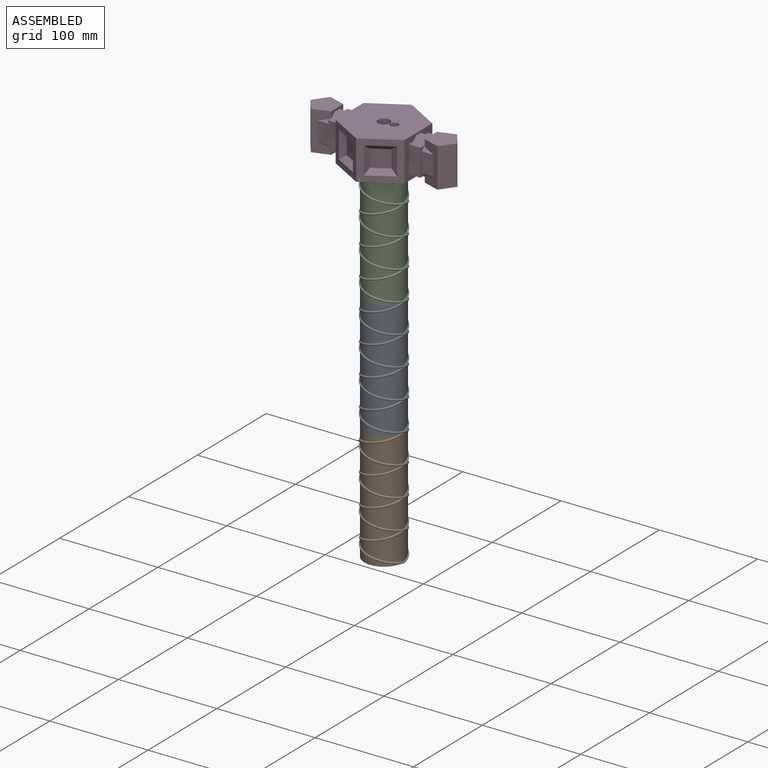
[diagram: assembled view]
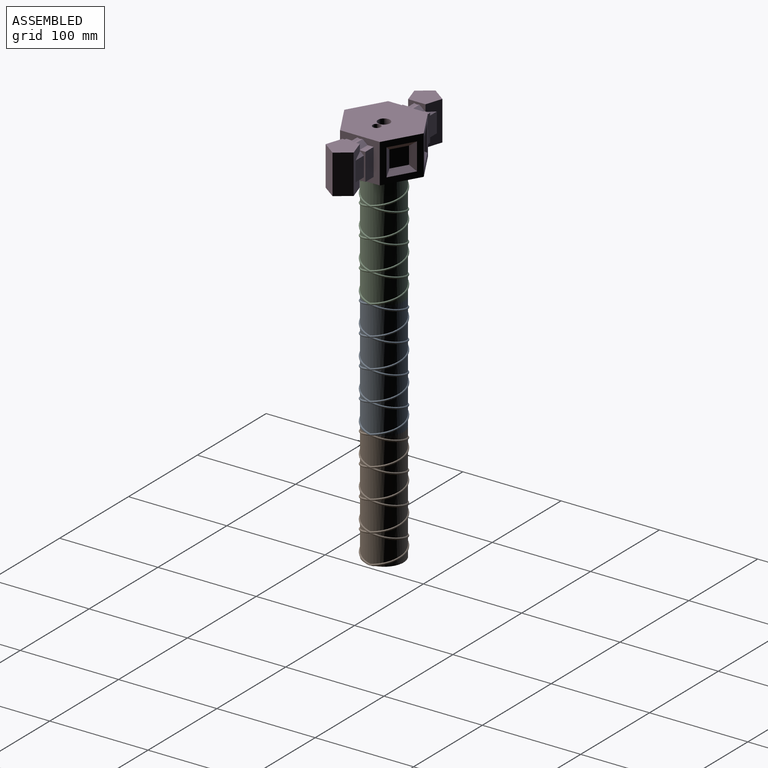
[diagram: assembled view, second angle]
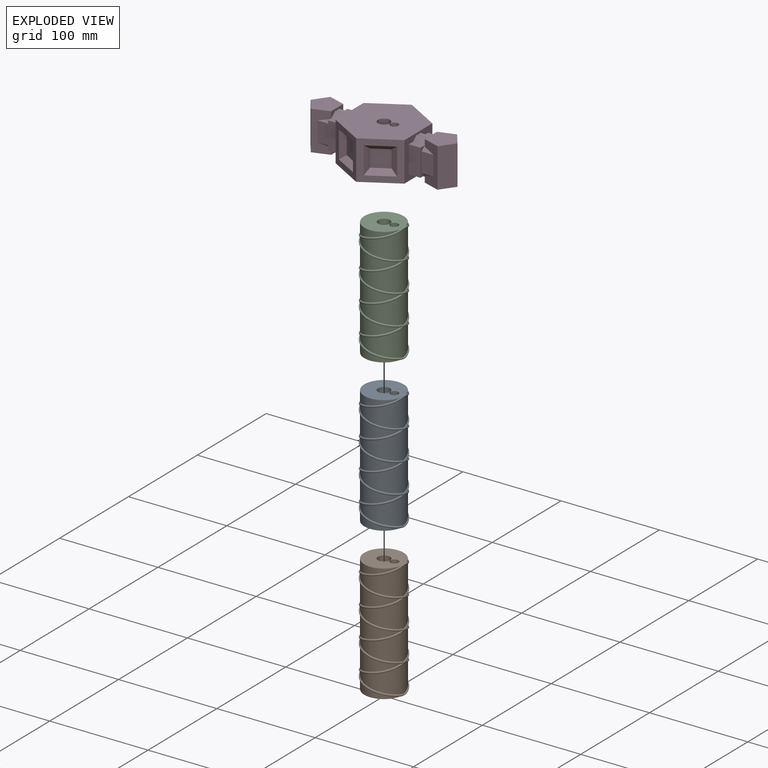
[diagram: exploded view]
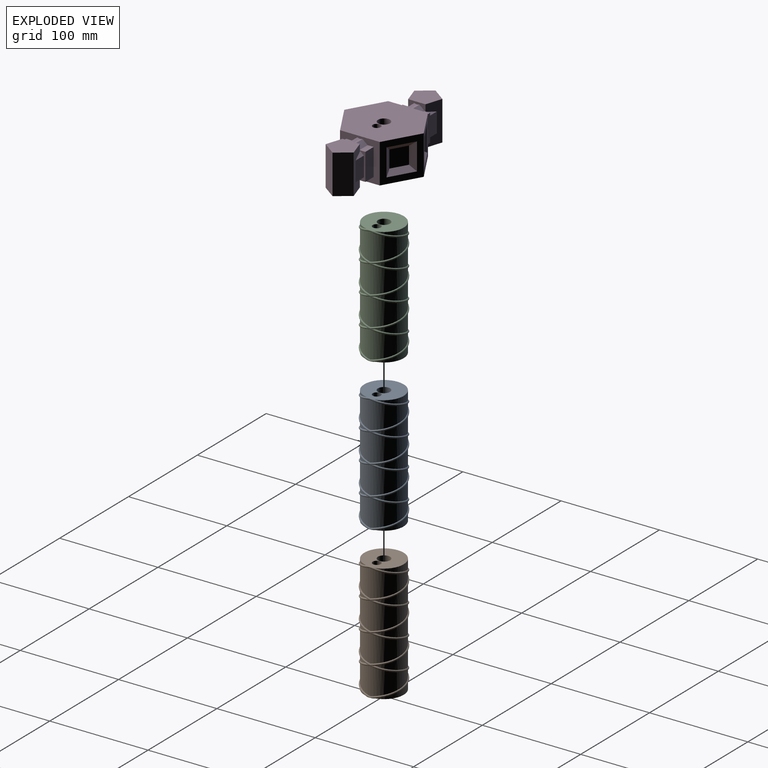
[diagram: exploded view, second angle]
ASSEMBLY  parts=4 mates=3
PART A: 29 faces, bbox 44x46.3x122 mm
  f0: bspline ~44x36.06mm, area 197.6mm2, adj f1,f4,f18,f20,f21
  f1: bspline ~44x36.06mm, area 197.6mm2, adj f0,f4,f17,f18,f20
  f2: bspline ~44x36.06mm, area 197.6mm2, adj f3,f10,f11,f19,f26
  f3: bspline ~44x36.06mm, area 197.6mm2, adj f2,f10,f11,f12,f19
  f4: cylinder r=20mm len=40mm, axis (0,0,-1), area 1641.1mm2, adj f0,f1,f17,f21
  f5: cylinder r=20mm len=40mm, axis (0,0,-1), area 1641.1mm2, adj f16,f17,f21,f22
  f6: cylinder r=20mm len=40mm, axis (0,0,-1), area 1641.1mm2, adj f15,f16,f22,f23
  f7: cylinder r=20mm len=40mm, axis (0,0,-1), area 1641.1mm2, adj f14,f15,f23,f24
  f8: cylinder r=20mm len=40mm, axis (0,0,-1), area 1641.1mm2, adj f13,f14,f24,f25
  f9: cylinder r=20mm len=40mm, axis (0,0,-1), area 1641.1mm2, adj f12,f13,f25,f26
  f10: cylinder r=20mm len=40mm, axis (0,0,-1), area 1641.1mm2, adj f2,f3,f12,f26
  f11: cylinder r=20mm len=40mm, axis (0,0,-1), area 820.6mm2, adj f2,f3,f19
  f12: bspline ~44x36.06mm, area 197.6mm2, adj f3,f9,f10,f25,f26
  f13: bspline ~44x36.06mm, area 197.6mm2, adj f8,f9,f24,f25,f26
  f14: bspline ~44x36.06mm, area 197.6mm2, adj f7,f8,f23,f24,f25
  f15: bspline ~44x36.06mm, area 197.6mm2, adj f6,f7,f22,f23,f24
  f16: bspline ~44x36.06mm, area 197.6mm2, adj f5,f6,f21,f22,f23
  f17: bspline ~44x36.06mm, area 197.6mm2, adj f1,f4,f5,f21,f22
  f18: cylinder r=20mm len=40mm, axis (0,0,-1), area 820.6mm2, adj f0,f1,f20
  f19: plane 41x40mm, normal (0,0,1), area 1090.5mm2, adj f2,f3,f11,f27,f28
  f20: plane 41x40mm, normal (0,0,-1), area 1090.5mm2, adj f0,f1,f18,f27,f28
  f21: bspline ~44x36.06mm, area 197.6mm2, adj f0,f4,f5,f16,f17
  f22: bspline ~44x36.06mm, area 197.6mm2, adj f5,f6,f15,f16,f17
  f23: bspline ~44x36.06mm, area 197.6mm2, adj f6,f7,f14,f15,f16
  f24: bspline ~44x36.06mm, area 197.6mm2, adj f7,f8,f13,f14,f15
  f25: bspline ~44x36.06mm, area 197.6mm2, adj f8,f9,f12,f13,f14
  f26: bspline ~44x36.06mm, area 197.6mm2, adj f2,f9,f10,f12,f13
  f27: cylinder r=4.15mm len=120mm, axis (0,0,1), area 3129mm2, adj f19,f20
  f28: cylinder r=6.15mm len=120mm, axis (0,0,1), area 4637mm2, adj f19,f20
PART B: 33 faces, bbox 44x46.3x122 mm
  f0: bspline ~44x36.06mm, area 197.6mm2, adj f1,f4,f18,f20,f21
  f1: bspline ~44x36.06mm, area 197.6mm2, adj f0,f4,f17,f18,f20
  f2: bspline ~44x36.06mm, area 197.6mm2, adj f3,f10,f11,f19,f26
  f3: bspline ~44x36.06mm, area 197.6mm2, adj f2,f10,f11,f12,f19
  f4: cylinder r=20mm len=40mm, axis (0,0,-1), area 1641.1mm2, adj f0,f1,f17,f21
  f5: cylinder r=20mm len=40mm, axis (0,0,-1), area 1641.1mm2, adj f16,f17,f21,f22
  f6: cylinder r=20mm len=40mm, axis (0,0,-1), area 1641.1mm2, adj f15,f16,f22,f23
  f7: cylinder r=20mm len=40mm, axis (0,0,-1), area 1641.1mm2, adj f14,f15,f23,f24
  f8: cylinder r=20mm len=40mm, axis (0,0,-1), area 1641.1mm2, adj f13,f14,f24,f25
  f9: cylinder r=20mm len=40mm, axis (0,0,-1), area 1641.1mm2, adj f12,f13,f25,f26
  f10: cylinder r=20mm len=40mm, axis (0,0,-1), area 1641.1mm2, adj f2,f3,f12,f26
  f11: cylinder r=20mm len=40mm, axis (0,0,-1), area 820.6mm2, adj f2,f3,f19
  f12: bspline ~44x36.06mm, area 197.6mm2, adj f3,f9,f10,f25,f26
  f13: bspline ~44x36.06mm, area 197.6mm2, adj f8,f9,f24,f25,f26
  f14: bspline ~44x36.06mm, area 197.6mm2, adj f7,f8,f23,f24,f25
  f15: bspline ~44x36.06mm, area 197.6mm2, adj f6,f7,f22,f23,f24
  f16: bspline ~44x36.06mm, area 197.6mm2, adj f5,f6,f21,f22,f23
  f17: bspline ~44x36.06mm, area 197.6mm2, adj f1,f4,f5,f21,f22
  f18: cylinder r=20mm len=40mm, axis (0,0,-1), area 820.6mm2, adj f0,f1,f20
  f19: plane 41x40mm, normal (0,0,1), area 1090.5mm2, adj f2,f3,f11,f27,f29
  f20: plane 41x40mm, normal (0,0,-1), area 1263.4mm2, adj f0,f1,f18
  f21: bspline ~44x36.06mm, area 197.6mm2, adj f0,f4,f5,f16,f17
  f22: bspline ~44x36.06mm, area 197.6mm2, adj f5,f6,f15,f16,f17
  f23: bspline ~44x36.06mm, area 197.6mm2, adj f6,f7,f14,f15,f16
  f24: bspline ~44x36.06mm, area 197.6mm2, adj f7,f8,f13,f14,f15
  f25: bspline ~44x36.06mm, area 197.6mm2, adj f8,f9,f12,f13,f14
  f26: bspline ~44x36.06mm, area 197.6mm2, adj f2,f9,f10,f12,f13
  f27: cylinder r=4.15mm len=88mm, axis (0,0,1), area 2294.6mm2, adj f19,f31
  f28: plane 4.3x4.3mm, normal (0,0,1), area 14.5mm2, adj f31
  f29: cylinder r=6.15mm len=88mm, axis (0,0,1), area 3400.5mm2, adj f19,f32
  f30: plane 8.3x8.3mm, normal (0,0,1), area 54.1mm2, adj f32
  f31: cone r=2.15mm half-angle=45deg, axis (0,0,1), area 56mm2, adj f27,f28
  f32: cone r=4.15mm half-angle=45deg, axis (0,0,1), area 91.5mm2, adj f29,f30
PART C: same geometry as A
PART D: 82 faces, bbox 149.6x80.8x40 mm
  f0: plane 20.15x11.99mm, normal (0,-1,0), area 241.6mm2, adj f16,f71,f75,f79
  f1: plane 20x11.99mm, normal (0,1,0), area 239.9mm2, adj f19,f64,f74,f78
  f2: plane 20x11.99mm, normal (0,-1,0), area 239.9mm2, adj f29,f63,f72,f77
  f3: plane 20x11.99mm, normal (0,1,0), area 239.9mm2, adj f32,f56,f73,f76
  f4: plane 40x35mm, normal (-0.5,-0.87,0), area 843.4mm2, adj f5,f9,f10,f11,f48,f49,f50,f51
  f5: plane 40x35mm, normal (0.5,-0.87,0), area 843.4mm2, adj f4,f6,f10,f11,f52,f53,f54,f55
  f6: plane 40.41x40mm, normal (1,0,0), area 756.1mm2, adj f5,f7,f10,f11,f24,f25,f26,f27
  f7: plane 40x35mm, normal (0.5,0.87,0), area 843.4mm2, adj f6,f8,f10,f11,f44,f45,f46,f47
  f8: plane 40x35mm, normal (-0.5,0.87,0), area 843.4mm2, adj f7,f9,f10,f11,f40,f41,f42,f43
  f9: plane 40.41x40mm, normal (-1,0,0), area 756.5mm2, adj f4,f8,f10,f11,f20,f21,f22,f23
  f10: plane 80.83x70mm, normal (0,0,1), area 4073.8mm2, adj f4,f5,f6,f7,f8,f9,f80,f81
  f11: plane 80.83x70mm, normal (0,0,-1), area 4073.8mm2, adj f4,f5,f6,f7,f8,f9,f80,f81
  f12: plane 40x14.27mm, normal (-0.81,-0.59,0), area 705.3mm2, adj f13,f14,f15,f16
  f13: plane 28.53x27.14mm, normal (0,0,1), area 535mm2, adj f12,f14,f16,f18,f19
  f14: plane 40x14.27mm, normal (-0.81,0.59,0), area 705.3mm2, adj f12,f13,f15,f19
  f15: plane 28.53x27.14mm, normal (0,0,-1), area 535mm2, adj f12,f14,f16,f17,f19
  f16: plane 40x16.77mm, normal (0.31,-0.95,0), area 429.7mm2, adj f0,f12,f13,f15,f17,f18,f75,f79
  f17: plane 17.63x6.98mm, normal (1,0,0), area 66.4mm2, adj f15,f16,f19,f21,f22,f78,f79
  f18: plane 17.63x6.94mm, normal (1,0,0), area 66.7mm2, adj f13,f16,f19,f20,f23,f74,f75
  f19: plane 40x16.77mm, normal (0.31,0.95,0), area 430.7mm2, adj f1,f13,f14,f15,f17,f18,f74,f78
  f20: plane 12.66x2.68mm, normal (0,-0.19,0.98), area 34.6mm2, adj f9,f18,f23,f74
  f21: plane 12.66x2.82mm, normal (0,-0.19,-0.98), area 36.4mm2, adj f9,f17,f22,f78
  f22: plane 12.66x2.68mm, normal (0,0.19,-0.98), area 34.6mm2, adj f9,f17,f21,f79
  f23: plane 12.66x2.68mm, normal (0,0.19,0.98), area 34.6mm2, adj f9,f18,f20,f75
  f24: plane 12.66x2.82mm, normal (0,0.19,0.98), area 36.4mm2, adj f6,f27,f28,f72
  f25: plane 12.66x2.68mm, normal (0,0.19,-0.98), area 34.6mm2, adj f6,f26,f33,f77
  f26: plane 12.66x2.82mm, normal (0,-0.19,-0.98), area 36.4mm2, adj f6,f25,f33,f76
  f27: plane 12.66x2.68mm, normal (0,-0.19,0.98), area 34.6mm2, adj f6,f24,f28,f73
  f28: plane 17.63x6.98mm, normal (-1,0,0), area 66.4mm2, adj f24,f27,f29,f32,f34,f72,f73
  f29: plane 40x16.77mm, normal (-0.31,-0.95,0), area 430.7mm2, adj f2,f28,f30,f33,f34,f35,f72,f77
  f30: plane 40x14.27mm, normal (0.81,-0.59,0), area 705.3mm2, adj f29,f31,f34,f35
  f31: plane 40x14.27mm, normal (0.81,0.59,0), area 705.3mm2, adj f30,f32,f34,f35
  f32: plane 40x16.77mm, normal (-0.31,0.95,0), area 430.7mm2, adj f3,f28,f31,f33,f34,f35,f73,f76
  f33: plane 17.63x6.98mm, normal (-1,0,0), area 66.4mm2, adj f25,f26,f29,f32,f35,f76,f77
  f34: plane 28.53x27.14mm, normal (0,0,1), area 535mm2, adj f28,f29,f30,f31,f32
  f35: plane 28.53x27.14mm, normal (0,0,-1), area 535mm2, adj f29,f30,f31,f32,f33
  f36: plane 17.6x15.6mm, normal (0.5,-0.87,0), area 317.1mm2, adj f52,f53,f54,f55
  f37: plane 17.6x15.6mm, normal (0.5,0.87,0), area 317.1mm2, adj f44,f45,f46,f47
  f38: plane 17.6x15.6mm, normal (-0.5,0.87,0), area 317.1mm2, adj f40,f41,f42,f43
  f39: plane 17.6x15.6mm, normal (-0.5,-0.87,0), area 317.1mm2, adj f48,f49,f50,f51
  f40: plane 27.6x6.83mm, normal (0.26,0.97,0), area 159.8mm2, adj f8,f38,f41,f42
  f41: plane 24.26x15.84mm, normal (-0.35,0.61,-0.71), area 162.7mm2, adj f8,f38,f40,f43
  f42: plane 24.26x15.84mm, normal (-0.35,0.61,0.71), area 162.7mm2, adj f8,f38,f40,f43
  f43: plane 27.6x6.83mm, normal (-0.97,0.26,0), area 159.8mm2, adj f8,f38,f41,f42
  f44: plane 27.6x6.83mm, normal (0.97,0.26,0), area 159.8mm2, adj f7,f37,f45,f46
  f45: plane 24.26x15.84mm, normal (0.35,0.61,-0.71), area 162.7mm2, adj f7,f37,f44,f47
  f46: plane 24.26x15.84mm, normal (0.35,0.61,0.71), area 162.7mm2, adj f7,f37,f44,f47
  f47: plane 27.6x6.83mm, normal (-0.26,0.97,0), area 159.8mm2, adj f7,f37,f45,f46
  f48: plane 27.6x6.83mm, normal (-0.97,-0.26,0), area 159.8mm2, adj f4,f39,f49,f50
  f49: plane 24.26x15.84mm, normal (-0.35,-0.61,-0.71), area 162.7mm2, adj f4,f39,f48,f51
  f50: plane 24.26x15.84mm, normal (-0.35,-0.61,0.71), area 162.7mm2, adj f4,f39,f48,f51
  f51: plane 27.6x6.83mm, normal (0.26,-0.97,0), area 159.8mm2, adj f4,f39,f49,f50
  f52: plane 27.6x6.83mm, normal (-0.26,-0.97,0), area 159.8mm2, adj f5,f36,f53,f54
  f53: plane 24.26x15.84mm, normal (0.35,-0.61,-0.71), area 162.7mm2, adj f5,f36,f52,f55
  f54: plane 24.26x15.84mm, normal (0.35,-0.61,0.71), area 162.7mm2, adj f5,f36,f52,f55
  f55: plane 27.6x6.83mm, normal (0.97,-0.26,0), area 159.8mm2, adj f5,f36,f53,f54
  f56: plane 27.6x6.12mm, normal (1,0,0), area 59.1mm2, adj f3,f57,f58,f59,f73,f76
  f57: plane 12x6.12mm, normal (0,0,-1), area 73.4mm2, adj f6,f56,f59,f76
  f58: plane 12x6.11mm, normal (0,0,1), area 73.3mm2, adj f6,f56,f59,f73
  f59: plane 27.6x12mm, normal (0,1,0), area 331.2mm2, adj f6,f56,f57,f58
  f60: plane 12x6.12mm, normal (0,0,1), area 73.4mm2, adj f6,f62,f63,f72
  f61: plane 12x6.11mm, normal (0,0,-1), area 73.3mm2, adj f6,f62,f63,f77
  f62: plane 27.6x12mm, normal (0,-1,0), area 331.2mm2, adj f6,f60,f61,f63
  f63: plane 27.6x6.12mm, normal (1,0,0), area 59.1mm2, adj f2,f60,f61,f62,f72,f77
  f64: plane 27.6x6.12mm, normal (-1,0,0), area 59.1mm2, adj f1,f65,f66,f67,f74,f78
  f65: plane 12x6.12mm, normal (0,0,-1), area 73.4mm2, adj f9,f64,f67,f78
  f66: plane 12x6.11mm, normal (0,0,1), area 73.3mm2, adj f9,f64,f67,f74
  f67: plane 27.6x12mm, normal (0,1,0), area 331.2mm2, adj f9,f64,f65,f66
  f68: plane 12x6.11mm, normal (0,0,1), area 73.3mm2, adj f9,f70,f71,f75
  f69: plane 12x6.11mm, normal (0,0,-1), area 73.3mm2, adj f9,f70,f71,f79
  f70: plane 27.6x12mm, normal (0,-1,0), area 331.2mm2, adj f9,f68,f69,f71
  f71: plane 27.6x6.11mm, normal (-1,0,0), area 58.8mm2, adj f0,f68,f69,f70,f75,f79
  f72: plane 23.99x9.68mm, normal (0,-0.64,0.77), area 114.9mm2, adj f2,f6,f24,f28,f29,f60,f63
  f73: plane 23.99x9.82mm, normal (0,0.63,0.78), area 115.7mm2, adj f3,f6,f27,f28,f32,f56,f58
  f74: plane 23.99x9.82mm, normal (0,0.63,0.78), area 115.7mm2, adj f1,f9,f18,f19,f20,f64,f66
  f75: plane 23.99x9.82mm, normal (0,-0.63,0.78), area 115.7mm2, adj f0,f9,f16,f18,f23,f68,f71
  f76: plane 23.99x9.68mm, normal (0,0.64,-0.77), area 114.9mm2, adj f3,f6,f26,f32,f33,f56,f57
  f77: plane 23.99x9.82mm, normal (0,-0.63,-0.78), area 115.7mm2, adj f2,f6,f25,f29,f33,f61,f63
  f78: plane 23.99x9.68mm, normal (0,0.64,-0.77), area 114.9mm2, adj f1,f9,f17,f19,f21,f64,f65
  f79: plane 23.99x9.82mm, normal (0,-0.63,-0.78), area 115.7mm2, adj f0,f9,f16,f17,f22,f69,f71
  f80: cylinder r=4.1mm len=40mm, axis (0,0,1), area 1030.4mm2, adj f10,f11
  f81: cylinder r=6.1mm len=40mm, axis (0,0,1), area 1533.1mm2, adj f10,f11
PLACE A rot(axis=(0,0,1),180deg) t=(76.69,0,120)mm
PLACE B at identity fixed
PLACE C rot(axis=(0,0,1),180deg) t=(76.69,0,240)mm
PLACE D t=(0,0,360)mm
MATE fastened B.f29 <-> A.f28  axis (0,0,1) through (0,0,120)mm
MATE fastened C.f28 <-> D.f81  axis (0,0,1) through (0,0,360)mm
MATE fastened A.f28 <-> C.f28  axis (0,0,1) through (0,0,240)mm
